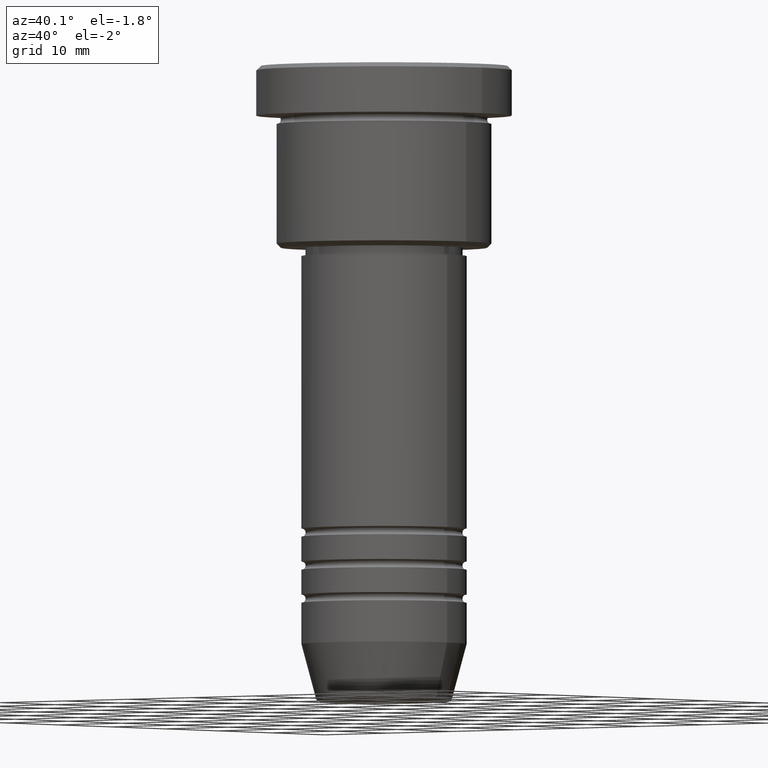
[diagram: clean part render]
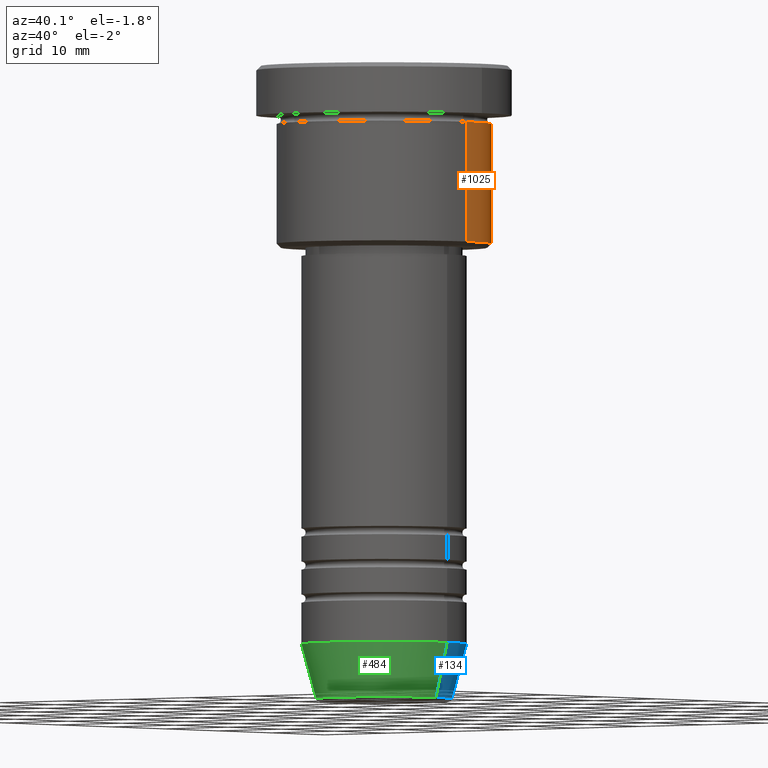
[diagram: same view with three faces highlighted in distinct colors, each labeled with its STEP entity id]
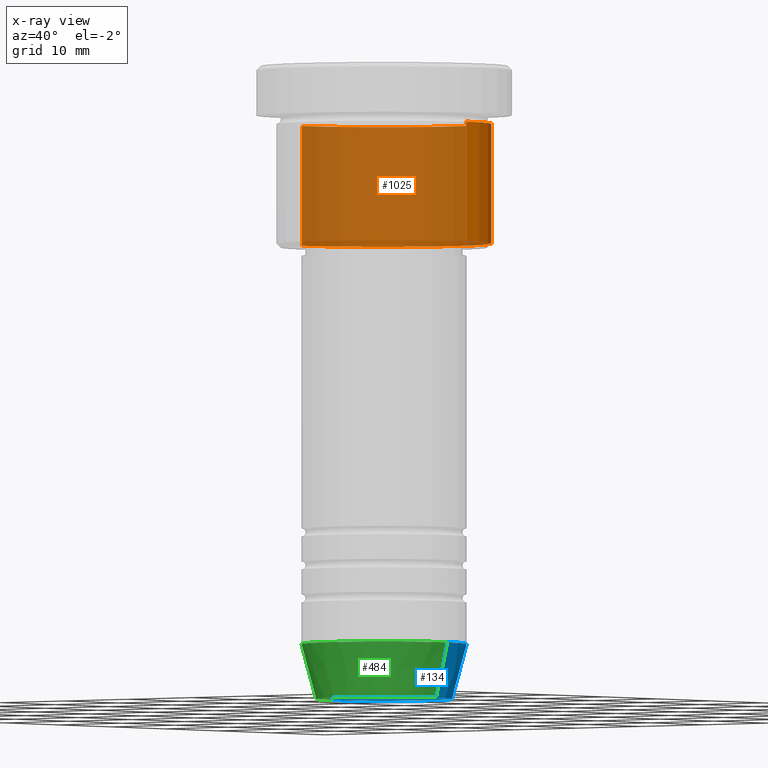
[diagram: x-ray of the same camera — body ghosted, the three highlighted faces saturated]
A machine part, auxiliary view with three faces highlighted in distinct colors.
The next image is the same camera in x-ray (body ghosted, the three faces saturated) — at least one of them is partly hidden behind the body in this view.
Their STEP definitions:

[orange] entity #1025 — the highlighted cylindrical surface (partial cylindrical patch) has radius 13 mm, axis along (-0, -0, 1).
#37 = ORIENTED_EDGE ( 'NONE', *, *, #737, .F. ) ;
#137 = CARTESIAN_POINT ( 'NONE',  ( 0.000000000000000000, 0.000000000000000000, -6.999999999999995559 ) ) ;
#146 = ORIENTED_EDGE ( 'NONE', *, *, #953, .T. ) ;
#149 = VERTEX_POINT ( 'NONE', #649 ) ;
#211 = CARTESIAN_POINT ( 'NONE',  ( 0.000000000000000000, 0.000000000000000000, 0.000000000000000000 ) ) ;
#224 = DIRECTION ( 'NONE',  ( -0.000000000000000000, -0.000000000000000000, 1.000000000000000000 ) ) ;
#235 = DIRECTION ( 'NONE',  ( 1.000000000000000000, 0.000000000000000000, 0.000000000000000000 ) ) ;
#239 = CIRCLE ( 'NONE', #904, 13.00000000000000178 ) ;
#305 = DIRECTION ( 'NONE',  ( -0.000000000000000000, -0.000000000000000000, 1.000000000000000000 ) ) ;
#309 = VERTEX_POINT ( 'NONE', #386 ) ;
#325 = CARTESIAN_POINT ( 'NONE',  ( 0.000000000000000000, 0.000000000000000000, -21.50000000000000355 ) ) ;
#348 = EDGE_LOOP ( 'NONE', ( #702, #146, #1125, #37 ) ) ;
#383 = LINE ( 'NONE', #743, #943 ) ;
#386 = CARTESIAN_POINT ( 'NONE',  ( 13.00000000000000178, 0.000000000000000000, -6.999999999999995559 ) ) ;
#543 = AXIS2_PLACEMENT_3D ( 'NONE', #325, #968, #861 ) ;
#561 = DIRECTION ( 'NONE',  ( -0.000000000000000000, -0.000000000000000000, 1.000000000000000000 ) ) ;
#649 = CARTESIAN_POINT ( 'NONE',  ( 13.00000000000000178, 0.000000000000000000, -21.50000000000000355 ) ) ;
#665 = DIRECTION ( 'NONE',  ( 1.000000000000000000, 0.000000000000000000, 0.000000000000000000 ) ) ;
#702 = ORIENTED_EDGE ( 'NONE', *, *, #1163, .T. ) ;
#718 = DIRECTION ( 'NONE',  ( -0.000000000000000000, -0.000000000000000000, 1.000000000000000000 ) ) ;
#737 = EDGE_CURVE ( 'NONE', #149, #309, #383, .T. ) ;
#743 = CARTESIAN_POINT ( 'NONE',  ( 13.00000000000000178, 0.000000000000000000, 0.000000000000000000 ) ) ;
#798 = VERTEX_POINT ( 'NONE', #849 ) ;
#822 = EDGE_CURVE ( 'NONE', #309, #1140, #239, .T. ) ;
#849 = CARTESIAN_POINT ( 'NONE',  ( -13.00000000000000178, 1.592040838891559293E-15, -21.50000000000000355 ) ) ;
#861 = DIRECTION ( 'NONE',  ( -1.000000000000000000, 0.000000000000000000, 0.000000000000000000 ) ) ;
#893 = LINE ( 'NONE', #1082, #1177 ) ;
#904 = AXIS2_PLACEMENT_3D ( 'NONE', #137, #224, #235 ) ;
#929 = FACE_OUTER_BOUND ( 'NONE', #348, .T. ) ;
#943 = VECTOR ( 'NONE', #561, 1000.000000000000000 ) ;
#953 = EDGE_CURVE ( 'NONE', #798, #1140, #893, .T. ) ;
#968 = DIRECTION ( 'NONE',  ( -0.000000000000000000, -0.000000000000000000, 1.000000000000000000 ) ) ;
#1025 = ADVANCED_FACE ( 'NONE', ( #929 ), #1117, .T. ) ;
#1052 = CARTESIAN_POINT ( 'NONE',  ( -13.00000000000000178, 1.592040838891559293E-15, -6.999999999999995559 ) ) ;
#1082 = CARTESIAN_POINT ( 'NONE',  ( -13.00000000000000178, 1.592040838891559293E-15, 0.000000000000000000 ) ) ;
#1099 = AXIS2_PLACEMENT_3D ( 'NONE', #211, #305, #665 ) ;
#1117 = CYLINDRICAL_SURFACE ( 'NONE', #1099, 13.00000000000000178 ) ;
#1125 = ORIENTED_EDGE ( 'NONE', *, *, #822, .F. ) ;
#1140 = VERTEX_POINT ( 'NONE', #1052 ) ;
#1163 = EDGE_CURVE ( 'NONE', #149, #798, #1179, .T. ) ;
#1177 = VECTOR ( 'NONE', #718, 1000.000000000000000 ) ;
#1179 = CIRCLE ( 'NONE', #543, 13.00000000000000178 ) ;

[blue] entity #134 — the highlighted conical surface has half-angle 15 deg.
#5 = DIRECTION ( 'NONE',  ( -0.000000000000000000, -0.000000000000000000, 1.000000000000000000 ) ) ;
#106 = EDGE_CURVE ( 'NONE', #410, #617, #843, .T. ) ;
#134 = ADVANCED_FACE ( 'NONE', ( #189 ), #278, .T. ) ;
#138 = ORIENTED_EDGE ( 'NONE', *, *, #1123, .F. ) ;
#153 = CARTESIAN_POINT ( 'NONE',  ( -8.223655072137189492, 1.115877042642912054E-15, -76.62940952255127058 ) ) ;
#166 = CARTESIAN_POINT ( 'NONE',  ( -10.00000000000000000, 1.224646799147353256E-15, -70.00000000000000000 ) ) ;
#189 = FACE_OUTER_BOUND ( 'NONE', #856, .T. ) ;
#215 = EDGE_CURVE ( 'NONE', #910, #540, #1008, .T. ) ;
#233 = DIRECTION ( 'NONE',  ( 1.000000000000000000, 0.000000000000000000, 0.000000000000000000 ) ) ;
#278 = CONICAL_SURFACE ( 'NONE', #981, 10.00000000000000000, 0.2617993877991497964 ) ;
#288 = CARTESIAN_POINT ( 'NONE',  ( 10.00000000000000000, 0.000000000000000000, -70.00000000000000000 ) ) ;
#331 = DIRECTION ( 'NONE',  ( -0.000000000000000000, -0.000000000000000000, 1.000000000000000000 ) ) ;
#340 = AXIS2_PLACEMENT_3D ( 'NONE', #1168, #5, #989 ) ;
#387 = DIRECTION ( 'NONE',  ( 1.000000000000000000, 0.000000000000000000, 0.000000000000000000 ) ) ;
#410 = VERTEX_POINT ( 'NONE', #153 ) ;
#460 = ORIENTED_EDGE ( 'NONE', *, *, #215, .F. ) ;
#480 = VECTOR ( 'NONE', #664, 1000.000000000000114 ) ;
#540 = VERTEX_POINT ( 'NONE', #797 ) ;
#562 = CARTESIAN_POINT ( 'NONE',  ( -10.00000000000000000, 1.224646799147353256E-15, -70.00000000000000000 ) ) ;
#617 = VERTEX_POINT ( 'NONE', #166 ) ;
#620 = VECTOR ( 'NONE', #925, 1000.000000000000114 ) ;
#637 = CARTESIAN_POINT ( 'NONE',  ( 8.223655072137189492, 0.000000000000000000, -76.62940952255127058 ) ) ;
#664 = DIRECTION ( 'NONE',  ( -0.2588190451025210725, 3.169619151431769255E-17, 0.9659258262890680902 ) ) ;
#699 = CIRCLE ( 'NONE', #905, 10.00000000000000000 ) ;
#723 = ORIENTED_EDGE ( 'NONE', *, *, #873, .T. ) ;
#730 = CARTESIAN_POINT ( 'NONE',  ( 0.000000000000000000, 0.000000000000000000, -70.00000000000000000 ) ) ;
#797 = CARTESIAN_POINT ( 'NONE',  ( 10.00000000000000000, 0.000000000000000000, -70.00000000000000000 ) ) ;
#830 = CIRCLE ( 'NONE', #340, 8.223655072137189492 ) ;
#839 = DIRECTION ( 'NONE',  ( -0.000000000000000000, -0.000000000000000000, 1.000000000000000000 ) ) ;
#843 = LINE ( 'NONE', #562, #480 ) ;
#856 = EDGE_LOOP ( 'NONE', ( #723, #967, #138, #460 ) ) ;
#873 = EDGE_CURVE ( 'NONE', #910, #410, #830, .T. ) ;
#905 = AXIS2_PLACEMENT_3D ( 'NONE', #1034, #331, #233 ) ;
#910 = VERTEX_POINT ( 'NONE', #637 ) ;
#925 = DIRECTION ( 'NONE',  ( 0.2588190451025210725, 0.000000000000000000, 0.9659258262890680902 ) ) ;
#967 = ORIENTED_EDGE ( 'NONE', *, *, #106, .T. ) ;
#981 = AXIS2_PLACEMENT_3D ( 'NONE', #730, #839, #387 ) ;
#989 = DIRECTION ( 'NONE',  ( 1.000000000000000000, 0.000000000000000000, 0.000000000000000000 ) ) ;
#1008 = LINE ( 'NONE', #288, #620 ) ;
#1034 = CARTESIAN_POINT ( 'NONE',  ( 0.000000000000000000, 0.000000000000000000, -70.00000000000000000 ) ) ;
#1123 = EDGE_CURVE ( 'NONE', #540, #617, #699, .T. ) ;
#1168 = CARTESIAN_POINT ( 'NONE',  ( 0.000000000000000000, 0.000000000000000000, -76.62940952255127058 ) ) ;

[green] entity #484 — the highlighted conical surface has half-angle 15 deg.
#89 = DIRECTION ( 'NONE',  ( 1.000000000000000000, 0.000000000000000000, 0.000000000000000000 ) ) ;
#106 = EDGE_CURVE ( 'NONE', #410, #617, #843, .T. ) ;
#142 = CARTESIAN_POINT ( 'NONE',  ( 0.000000000000000000, 0.000000000000000000, -76.62940952255127058 ) ) ;
#153 = CARTESIAN_POINT ( 'NONE',  ( -8.223655072137189492, 1.115877042642912054E-15, -76.62940952255127058 ) ) ;
#166 = CARTESIAN_POINT ( 'NONE',  ( -10.00000000000000000, 1.224646799147353256E-15, -70.00000000000000000 ) ) ;
#198 = AXIS2_PLACEMENT_3D ( 'NONE', #814, #705, #89 ) ;
#215 = EDGE_CURVE ( 'NONE', #910, #540, #1008, .T. ) ;
#240 = DIRECTION ( 'NONE',  ( -0.000000000000000000, -0.000000000000000000, 1.000000000000000000 ) ) ;
#251 = ORIENTED_EDGE ( 'NONE', *, *, #382, .T. ) ;
#288 = CARTESIAN_POINT ( 'NONE',  ( 10.00000000000000000, 0.000000000000000000, -70.00000000000000000 ) ) ;
#320 = ORIENTED_EDGE ( 'NONE', *, *, #528, .F. ) ;
#382 = EDGE_CURVE ( 'NONE', #410, #910, #919, .T. ) ;
#399 = ORIENTED_EDGE ( 'NONE', *, *, #215, .T. ) ;
#409 = AXIS2_PLACEMENT_3D ( 'NONE', #414, #778, #1142 ) ;
#410 = VERTEX_POINT ( 'NONE', #153 ) ;
#414 = CARTESIAN_POINT ( 'NONE',  ( 0.000000000000000000, 0.000000000000000000, -70.00000000000000000 ) ) ;
#480 = VECTOR ( 'NONE', #664, 1000.000000000000114 ) ;
#484 = ADVANCED_FACE ( 'NONE', ( #496 ), #769, .T. ) ;
#496 = FACE_OUTER_BOUND ( 'NONE', #889, .T. ) ;
#528 = EDGE_CURVE ( 'NONE', #617, #540, #1098, .T. ) ;
#535 = ORIENTED_EDGE ( 'NONE', *, *, #106, .F. ) ;
#540 = VERTEX_POINT ( 'NONE', #797 ) ;
#562 = CARTESIAN_POINT ( 'NONE',  ( -10.00000000000000000, 1.224646799147353256E-15, -70.00000000000000000 ) ) ;
#617 = VERTEX_POINT ( 'NONE', #166 ) ;
#620 = VECTOR ( 'NONE', #925, 1000.000000000000114 ) ;
#637 = CARTESIAN_POINT ( 'NONE',  ( 8.223655072137189492, 0.000000000000000000, -76.62940952255127058 ) ) ;
#664 = DIRECTION ( 'NONE',  ( -0.2588190451025210725, 3.169619151431769255E-17, 0.9659258262890680902 ) ) ;
#705 = DIRECTION ( 'NONE',  ( -0.000000000000000000, -0.000000000000000000, 1.000000000000000000 ) ) ;
#769 = CONICAL_SURFACE ( 'NONE', #409, 10.00000000000000000, 0.2617993877991497964 ) ;
#778 = DIRECTION ( 'NONE',  ( -0.000000000000000000, -0.000000000000000000, 1.000000000000000000 ) ) ;
#797 = CARTESIAN_POINT ( 'NONE',  ( 10.00000000000000000, 0.000000000000000000, -70.00000000000000000 ) ) ;
#814 = CARTESIAN_POINT ( 'NONE',  ( 0.000000000000000000, 0.000000000000000000, -70.00000000000000000 ) ) ;
#843 = LINE ( 'NONE', #562, #480 ) ;
#882 = AXIS2_PLACEMENT_3D ( 'NONE', #142, #240, #961 ) ;
#889 = EDGE_LOOP ( 'NONE', ( #535, #251, #399, #320 ) ) ;
#910 = VERTEX_POINT ( 'NONE', #637 ) ;
#919 = CIRCLE ( 'NONE', #882, 8.223655072137189492 ) ;
#925 = DIRECTION ( 'NONE',  ( 0.2588190451025210725, 0.000000000000000000, 0.9659258262890680902 ) ) ;
#961 = DIRECTION ( 'NONE',  ( 1.000000000000000000, 0.000000000000000000, 0.000000000000000000 ) ) ;
#1008 = LINE ( 'NONE', #288, #620 ) ;
#1098 = CIRCLE ( 'NONE', #198, 10.00000000000000000 ) ;
#1142 = DIRECTION ( 'NONE',  ( 1.000000000000000000, 0.000000000000000000, 0.000000000000000000 ) ) ;